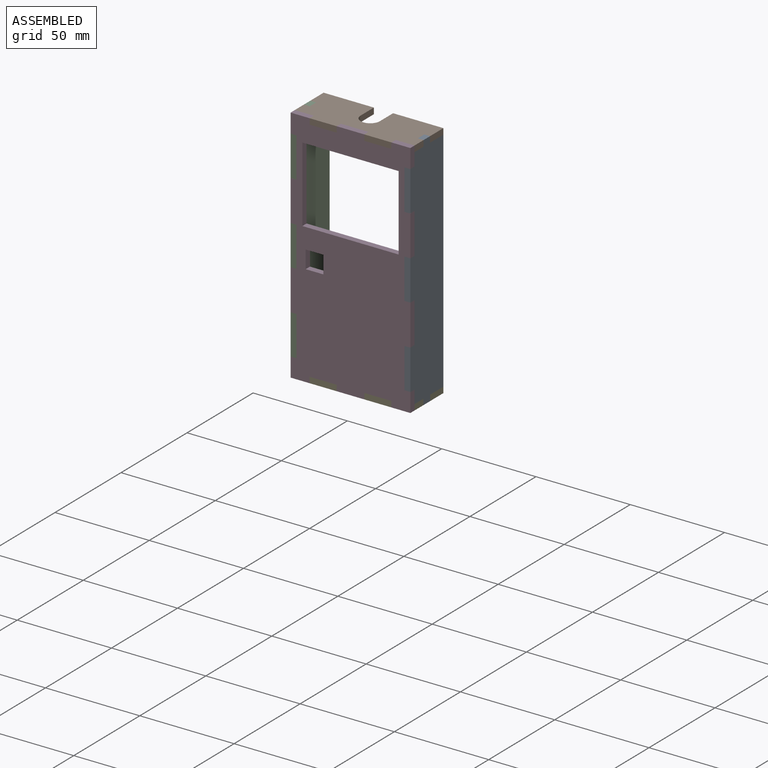
[diagram: assembled view]
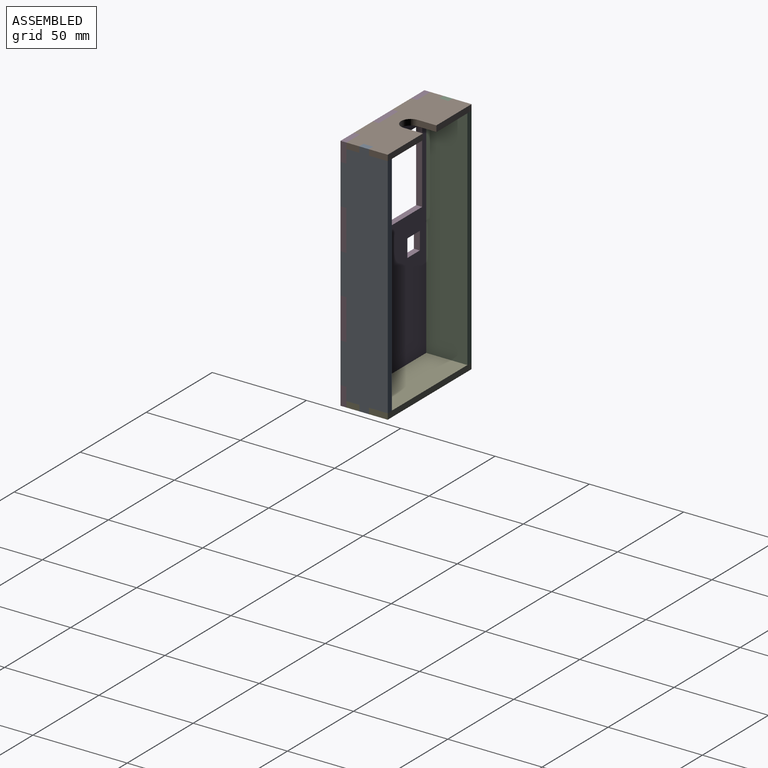
[diagram: assembled view, second angle]
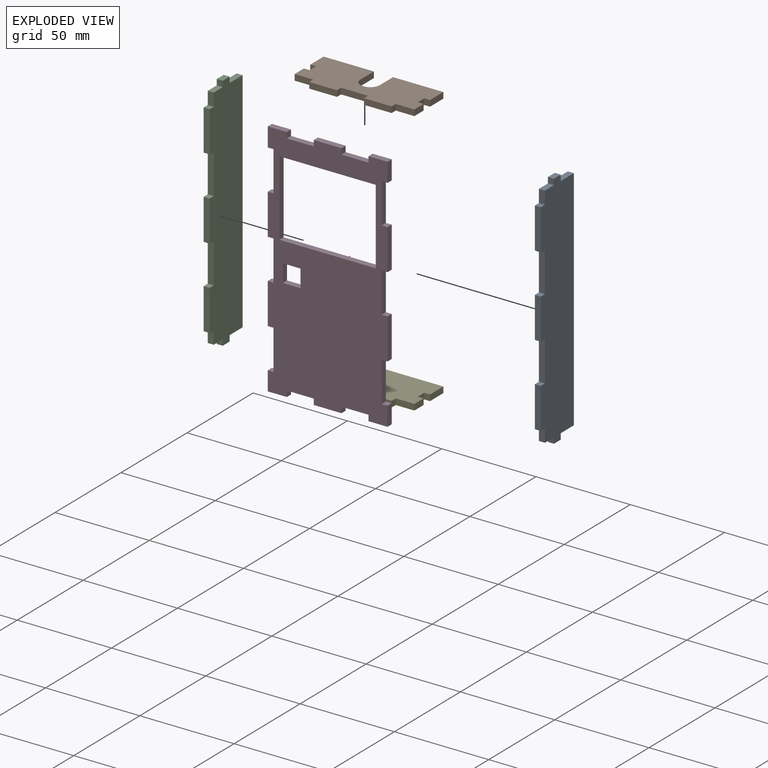
[diagram: exploded view]
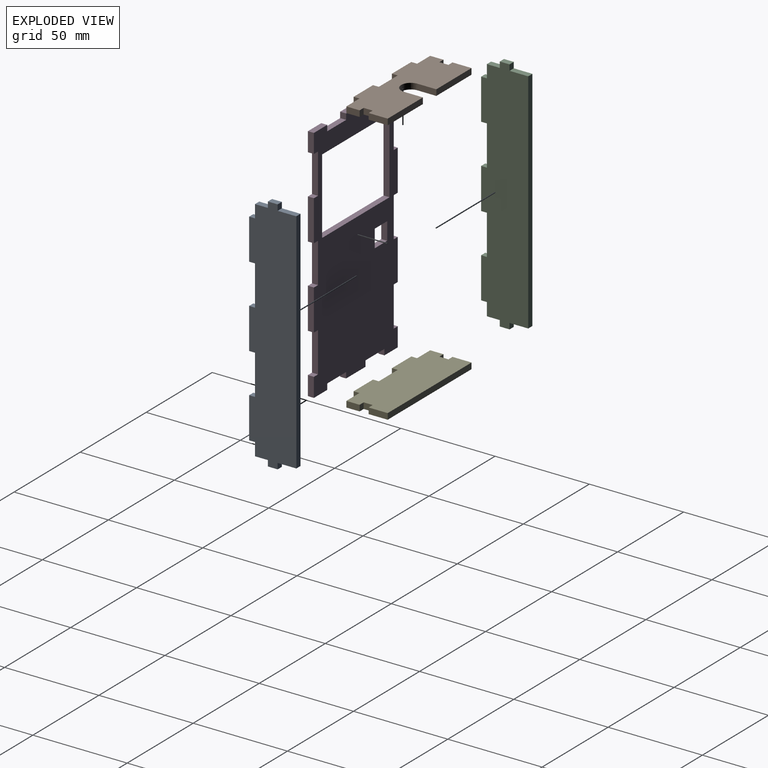
[diagram: exploded view, second angle]
ASSEMBLY  parts=5 mates=12
PART A: 26 faces, bbox 25x3.2x127 mm
  f0: plane 21.6x3.18mm, normal (1,0,0), area 68.6mm2, adj f6,f7,f15,f21
  f1: plane 21.6x3.18mm, normal (1,0,0), area 68.6mm2, adj f6,f7,f12,f17
  f2: plane 21.6x3.18mm, normal (1,0,0), area 68.6mm2, adj f6,f7,f10,f14
  f3: plane 5.2x3.18mm, normal (0,0,1), area 16.5mm2, adj f6,f7,f9,f24
  f4: plane 120.85x3.18mm, normal (-1,0,0), area 383.7mm2, adj f6,f7,f22,f25
  f5: plane 5.2x3.18mm, normal (0,0,-1), area 16.5mm2, adj f6,f7,f18,f23
  f6: plane 127x25mm, normal (0,-1,0), area 2880.9mm2, adj f0,f1,f2,f3,f4,f5,f8,f9
  f7: plane 127x25mm, normal (0,1,0), area 2880.9mm2, adj f0,f1,f2,f3,f4,f5,f8,f9
  f8: plane 6.83x3.18mm, normal (0,0,1), area 21.7mm2, adj f6,f7,f9,f11
  f9: plane 3.18x3.08mm, normal (1,0,0), area 9.8mm2, adj f3,f6,f7,f8
  f10: plane 3.18x3.08mm, normal (0,0,1), area 9.8mm2, adj f2,f6,f7,f11
  f11: plane 6.83x3.18mm, normal (1,0,0), area 21.7mm2, adj f6,f7,f8,f10
  f12: plane 3.18x3.08mm, normal (0,0,1), area 9.8mm2, adj f1,f6,f7,f13
  f13: plane 21.2x3.18mm, normal (1,0,0), area 67.3mm2, adj f6,f7,f12,f14
  f14: plane 3.18x3.08mm, normal (0,0,-1), area 9.8mm2, adj f2,f6,f7,f13
  f15: plane 3.18x3.08mm, normal (0,0,1), area 9.8mm2, adj f0,f6,f7,f16
  f16: plane 21.2x3.18mm, normal (1,0,0), area 67.3mm2, adj f6,f7,f15,f17
  f17: plane 3.18x3.08mm, normal (0,0,-1), area 9.8mm2, adj f1,f6,f7,f16
  f18: plane 3.18x3.08mm, normal (1,0,0), area 9.8mm2, adj f5,f6,f7,f19
  f19: plane 6.83x3.18mm, normal (0,0,-1), area 21.7mm2, adj f6,f7,f18,f20
  f20: plane 6.83x3.18mm, normal (1,0,0), area 21.7mm2, adj f6,f7,f19,f21
  f21: plane 3.18x3.08mm, normal (0,0,-1), area 9.8mm2, adj f0,f6,f7,f20
  f22: plane 9.9x3.18mm, normal (0,0,-1), area 31.4mm2, adj f4,f6,f7,f23
  f23: plane 3.18x3.08mm, normal (-1,0,0), area 9.8mm2, adj f5,f6,f7,f22
  f24: plane 3.18x3.08mm, normal (-1,0,0), area 9.8mm2, adj f3,f6,f7,f25
  f25: plane 9.9x3.18mm, normal (0,0,1), area 31.4mm2, adj f4,f6,f7,f24
PART B: 26 faces, bbox 25x63.5x3.2 mm
  f0: plane 26.67x3.18mm, normal (-1,0,0), area 84.7mm2, adj f1,f2,f8,f23
  f1: plane 63.5x25mm, normal (0,0,1), area 1311mm2, adj f0,f3,f4,f5,f6,f7,f8,f9
  f2: plane 63.5x25mm, normal (0,0,-1), area 1311mm2, adj f0,f3,f4,f5,f6,f7,f8,f9
  f3: plane 14.7x3.18mm, normal (1,0,0), area 46.7mm2, adj f1,f2,f16,f19
  f4: plane 14.7x3.18mm, normal (1,0,0), area 46.7mm2, adj f1,f2,f14,f17
  f5: plane 10.1x3.18mm, normal (0,1,0), area 32.1mm2, adj f1,f2,f9,f20
  f6: plane 7.03x3.18mm, normal (0,1,0), area 22.3mm2, adj f1,f2,f13,f22
  f7: plane 7.03x3.18mm, normal (0,-1,0), area 22.3mm2, adj f1,f2,f12,f15
  f8: plane 10.1x3.18mm, normal (0,-1,0), area 32.1mm2, adj f0,f1,f2,f11
  f9: plane 26.67x3.18mm, normal (-1,0,0), area 84.7mm2, adj f1,f2,f5,f25
  f10: plane 4.8x3.18mm, normal (0,-1,0), area 15.2mm2, adj f1,f2,f11,f12
  f11: plane 3.18x3.08mm, normal (1,0,0), area 9.8mm2, adj f1,f2,f8,f10
  f12: plane 3.18x3.08mm, normal (-1,0,0), area 9.8mm2, adj f1,f2,f7,f10
  f13: plane 9.9x3.18mm, normal (1,0,0), area 31.4mm2, adj f1,f2,f6,f14
  f14: plane 3.18x3.08mm, normal (0,1,0), area 9.8mm2, adj f1,f2,f4,f13
  f15: plane 9.9x3.18mm, normal (1,0,0), area 31.4mm2, adj f1,f2,f7,f16
  f16: plane 3.18x3.08mm, normal (0,-1,0), area 9.8mm2, adj f1,f2,f3,f15
  f17: plane 3.18x3.08mm, normal (0,-1,0), area 9.8mm2, adj f1,f2,f4,f18
  f18: plane 14.3x3.18mm, normal (1,0,0), area 45.4mm2, adj f1,f2,f17,f19
  f19: plane 3.18x3.08mm, normal (0,1,0), area 9.8mm2, adj f1,f2,f3,f18
  f20: plane 3.18x3.08mm, normal (1,0,0), area 9.8mm2, adj f1,f2,f5,f21
  f21: plane 4.8x3.18mm, normal (0,1,0), area 15.2mm2, adj f1,f2,f20,f22
  f22: plane 3.18x3.08mm, normal (-1,0,0), area 9.8mm2, adj f1,f2,f6,f21
  f23: plane 10x3.18mm, normal (0,1,0), area 31.8mm2, adj f0,f1,f2,f24
  f24: cylinder r=5.08mm len=10.16mm, axis (0,0,1), area 50.7mm2, adj f1,f2,f23,f25
  f25: plane 10x3.18mm, normal (0,-1,0), area 31.8mm2, adj f1,f2,f9,f24
PART C: same geometry as A
PART D: 54 faces, bbox 63.5x3.2x127 mm
  f0: plane 10.1x3.18mm, normal (0,0,1), area 32.1mm2, adj f10,f11,f23,f41
  f1: plane 14.7x3.18mm, normal (0,0,1), area 46.7mm2, adj f10,f11,f26,f40
  f2: plane 10.1x3.18mm, normal (-1,0,0), area 32.1mm2, adj f10,f11,f14,f52
  f3: plane 21.6x3.18mm, normal (-1,0,0), area 68.6mm2, adj f10,f11,f49,f53
  f4: plane 21.6x3.18mm, normal (-1,0,0), area 68.6mm2, adj f10,f11,f47,f50
  f5: plane 10.1x3.18mm, normal (0,0,-1), area 32.1mm2, adj f7,f10,f11,f44
  f6: plane 14.7x3.18mm, normal (0,0,-1), area 46.7mm2, adj f10,f11,f29,f42
  f7: plane 10.1x3.18mm, normal (1,0,0), area 32.1mm2, adj f5,f10,f11,f36
  f8: plane 21.6x3.18mm, normal (1,0,0), area 68.6mm2, adj f10,f11,f33,f38
  f9: plane 21.6x3.18mm, normal (1,0,0), area 68.6mm2, adj f10,f11,f30,f35
  f10: plane 127x63.5mm, normal (0,1,0), area 5367mm2, adj f0,f1,f2,f3,f4,f5,f6,f7
  f11: plane 127x63.5mm, normal (0,-1,0), area 5367mm2, adj f0,f1,f2,f3,f4,f5,f6,f7
  f12: plane 10.1x3.18mm, normal (0,0,1), area 32.1mm2, adj f10,f11,f13,f25
  f13: plane 10.1x3.18mm, normal (-1,0,0), area 32.1mm2, adj f10,f11,f12,f45
  f14: plane 10.1x3.18mm, normal (0,0,-1), area 32.1mm2, adj f2,f10,f11,f27
  f15: plane 40x3.18mm, normal (1,0,0), area 127mm2, adj f10,f11,f16,f21
  f16: plane 51.05x3.18mm, normal (0,0,-1), area 162.1mm2, adj f10,f11,f15,f17
  f17: plane 40x3.18mm, normal (-1,0,0), area 127mm2, adj f10,f11,f16,f21
  f18: plane 9.4x3.18mm, normal (0,0,-1), area 29.8mm2, adj f10,f11,f19,f22
  f19: plane 9.4x3.18mm, normal (-1,0,0), area 29.8mm2, adj f10,f11,f18,f20
  f20: plane 9.4x3.18mm, normal (0,0,1), area 29.8mm2, adj f10,f11,f19,f22
  f21: plane 51.05x3.18mm, normal (0,0,1), area 162.1mm2, adj f10,f11,f15,f17
  f22: plane 9.4x3.18mm, normal (1,0,0), area 29.8mm2, adj f10,f11,f18,f20
  f23: plane 10.1x3.18mm, normal (1,0,0), area 32.1mm2, adj f0,f10,f11,f32
  f24: plane 14.3x3.18mm, normal (0,0,1), area 45.4mm2, adj f10,f11,f25,f26
  f25: plane 3.18x3.08mm, normal (1,0,0), area 9.8mm2, adj f10,f11,f12,f24
  f26: plane 3.18x3.08mm, normal (-1,0,0), area 9.8mm2, adj f1,f10,f11,f24
  f27: plane 3.18x3.08mm, normal (1,0,0), area 9.8mm2, adj f10,f11,f14,f28
  f28: plane 14.3x3.18mm, normal (0,0,-1), area 45.4mm2, adj f10,f11,f27,f29
  f29: plane 3.18x3.08mm, normal (-1,0,0), area 9.8mm2, adj f6,f10,f11,f28
  f30: plane 3.18x3.08mm, normal (0,0,1), area 9.8mm2, adj f9,f10,f11,f31
  f31: plane 21.2x3.18mm, normal (1,0,0), area 67.3mm2, adj f10,f11,f30,f32
  f32: plane 3.18x3.08mm, normal (0,0,-1), area 9.8mm2, adj f10,f11,f23,f31
  f33: plane 3.18x3.08mm, normal (0,0,1), area 9.8mm2, adj f8,f10,f11,f34
  f34: plane 21.2x3.18mm, normal (1,0,0), area 67.3mm2, adj f10,f11,f33,f35
  f35: plane 3.18x3.08mm, normal (0,0,-1), area 9.8mm2, adj f9,f10,f11,f34
  f36: plane 3.18x3.08mm, normal (0,0,1), area 9.8mm2, adj f7,f10,f11,f37
  f37: plane 21.2x3.18mm, normal (1,0,0), area 67.3mm2, adj f10,f11,f36,f38
  f38: plane 3.18x3.08mm, normal (0,0,-1), area 9.8mm2, adj f8,f10,f11,f37
  f39: plane 14.3x3.18mm, normal (0,0,1), area 45.4mm2, adj f10,f11,f40,f41
  f40: plane 3.18x3.08mm, normal (1,0,0), area 9.8mm2, adj f1,f10,f11,f39
  f41: plane 3.18x3.08mm, normal (-1,0,0), area 9.8mm2, adj f0,f10,f11,f39
  f42: plane 3.18x3.08mm, normal (1,0,0), area 9.8mm2, adj f6,f10,f11,f43
  f43: plane 14.3x3.18mm, normal (0,0,-1), area 45.4mm2, adj f10,f11,f42,f44
  f44: plane 3.18x3.08mm, normal (-1,0,0), area 9.8mm2, adj f5,f10,f11,f43
  f45: plane 3.18x3.08mm, normal (0,0,-1), area 9.8mm2, adj f10,f11,f13,f46
  f46: plane 21.2x3.18mm, normal (-1,0,0), area 67.3mm2, adj f10,f11,f45,f47
  f47: plane 3.18x3.08mm, normal (0,0,1), area 9.8mm2, adj f4,f10,f11,f46
  f48: plane 21.2x3.18mm, normal (-1,0,0), area 67.3mm2, adj f10,f11,f49,f50
  f49: plane 3.18x3.08mm, normal (0,0,1), area 9.8mm2, adj f3,f10,f11,f48
  f50: plane 3.18x3.08mm, normal (0,0,-1), area 9.8mm2, adj f4,f10,f11,f48
  f51: plane 21.2x3.18mm, normal (-1,0,0), area 67.3mm2, adj f10,f11,f52,f53
  f52: plane 3.18x3.08mm, normal (0,0,1), area 9.8mm2, adj f2,f10,f11,f51
  f53: plane 3.18x3.08mm, normal (0,0,-1), area 9.8mm2, adj f3,f10,f11,f51
PART E: 22 faces, bbox 25x63.5x3.2 mm
  f0: plane 14.7x3.18mm, normal (1,0,0), area 46.7mm2, adj f6,f7,f15,f18
  f1: plane 14.7x3.18mm, normal (1,0,0), area 46.7mm2, adj f6,f7,f13,f16
  f2: plane 10.1x3.18mm, normal (0,1,0), area 32.1mm2, adj f6,f7,f8,f19
  f3: plane 7.03x3.18mm, normal (0,1,0), area 22.3mm2, adj f6,f7,f12,f21
  f4: plane 7.03x3.18mm, normal (0,-1,0), area 22.3mm2, adj f6,f7,f11,f14
  f5: plane 10.1x3.18mm, normal (0,-1,0), area 32.1mm2, adj f6,f7,f8,f10
  f6: plane 63.5x25mm, normal (0,0,1), area 1453.1mm2, adj f0,f1,f2,f3,f4,f5,f8,f9
  f7: plane 63.5x25mm, normal (0,0,-1), area 1453.1mm2, adj f0,f1,f2,f3,f4,f5,f8,f9
  f8: plane 63.5x3.18mm, normal (-1,0,0), area 201.6mm2, adj f2,f5,f6,f7
  f9: plane 4.8x3.18mm, normal (0,-1,0), area 15.2mm2, adj f6,f7,f10,f11
  f10: plane 3.18x3.08mm, normal (1,0,0), area 9.8mm2, adj f5,f6,f7,f9
  f11: plane 3.18x3.08mm, normal (-1,0,0), area 9.8mm2, adj f4,f6,f7,f9
  f12: plane 9.9x3.18mm, normal (1,0,0), area 31.4mm2, adj f3,f6,f7,f13
  f13: plane 3.18x3.08mm, normal (0,1,0), area 9.8mm2, adj f1,f6,f7,f12
  f14: plane 9.9x3.18mm, normal (1,0,0), area 31.4mm2, adj f4,f6,f7,f15
  f15: plane 3.18x3.08mm, normal (0,-1,0), area 9.8mm2, adj f0,f6,f7,f14
  f16: plane 3.18x3.08mm, normal (0,-1,0), area 9.8mm2, adj f1,f6,f7,f17
  f17: plane 14.3x3.18mm, normal (1,0,0), area 45.4mm2, adj f6,f7,f16,f18
  f18: plane 3.18x3.08mm, normal (0,1,0), area 9.8mm2, adj f0,f6,f7,f17
  f19: plane 3.18x3.08mm, normal (1,0,0), area 9.8mm2, adj f2,f6,f7,f20
  f20: plane 4.8x3.18mm, normal (0,1,0), area 15.2mm2, adj f6,f7,f19,f21
  f21: plane 3.18x3.08mm, normal (-1,0,0), area 9.8mm2, adj f3,f6,f7,f20
PLACE A rot(axis=(0,0,-1),90deg) t=(85.41,45.44,11.49)mm
PLACE B rot(axis=(0,0,-1),90deg) t=(53.66,45.44,71.82)mm
PLACE C rot(axis=(0,0,-1),90deg) t=(25.08,45.44,11.49)mm
PLACE D t=(53.66,32.94,11.49)mm fixed
PLACE E rot(axis=(0,0,-1),90deg) t=(53.66,45.44,-52.01)mm
MATE planar A.f7 <-> D.f9  axis (1,0,0) through (85.41,46.09,11.49)mm
MATE planar C.f3 <-> D.f12  axis (0,0,1) through (23.5,45.44,74.99)mm
MATE planar E.f2 <-> A.f7  axis (1,0,0) through (85.41,52.89,-50.42)mm
MATE planar C.f6 <-> D.f4  axis (-1,0,0) through (21.91,46.09,11.49)mm
MATE planar E.f1 <-> D.f11  axis (0,-1,0) through (68.16,32.94,-50.42)mm
MATE planar D.f11 <-> B.f4  axis (0,-1,0) through (53.97,32.94,-0.15)mm
MATE planar C.f3 <-> B.f1  axis (0,0,1) through (23.5,45.44,74.99)mm
MATE planar A.f3 <-> D.f0  axis (0,0,1) through (83.82,45.44,74.99)mm
MATE planar A.f5 <-> E.f7  axis (0,0,-1) through (83.82,45.44,-52.01)mm
MATE planar A.f7 <-> B.f6  axis (1,0,0) through (85.41,46.09,11.49)mm
MATE planar D.f11 <-> A.f2  axis (0,-1,0) through (53.97,32.94,-0.15)mm
MATE planar C.f1 <-> D.f11  axis (0,-1,0) through (23.5,32.94,11.49)mm
